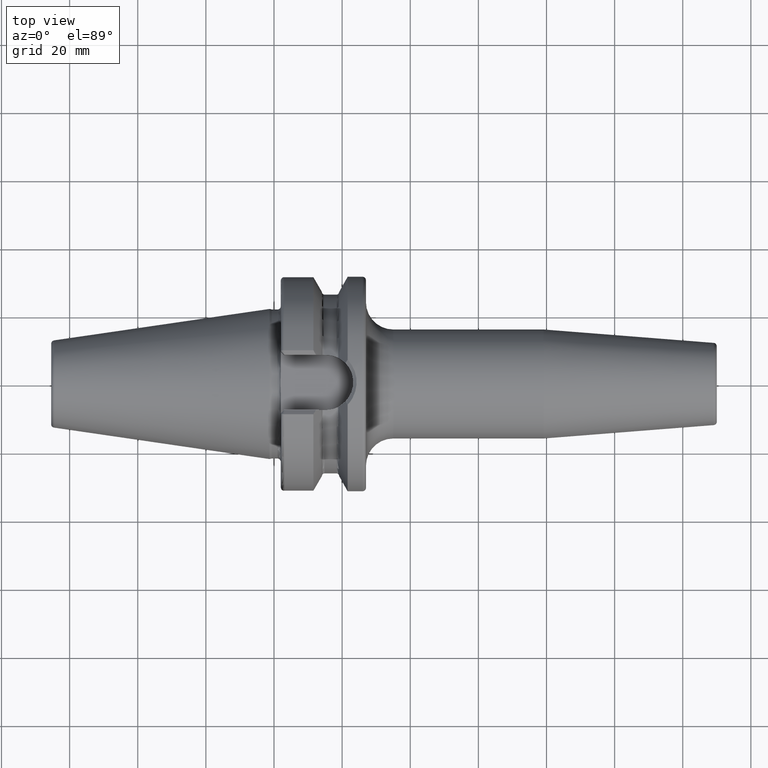
[diagram: clean part render]
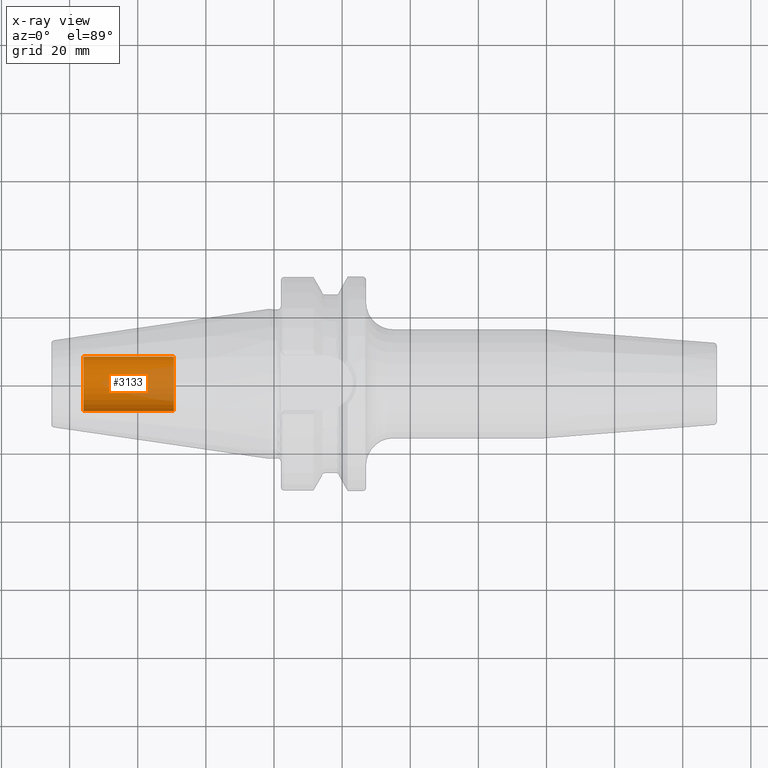
[diagram: x-ray — body ghosted, one internal face saturated and labeled with its STEP entity id]
A machine part, top view, then the same camera in x-ray: the body is ghosted and one INTERNAL B-rep face — a face not visible from any outside direction — is saturated and labeled: STEP entity #3133.
In plain terms, the highlighted cylindrical surface (edge-blend (fillet) strip) has radius 8.0028 mm, axis along (1, 0, 0).
Its self-contained STEP definition (entity closure, byte-faithful):
#3068=CARTESIAN_POINT('',(-5.595E1,0.E0,0.E0));
#3069=DIRECTION('',(-1.E0,0.E0,0.E0));
#3070=DIRECTION('',(0.E0,1.E0,0.E0));
#3071=AXIS2_PLACEMENT_3D('',#3068,#3069,#3070);
#3073=DIRECTION('',(1.E0,0.E0,0.E0));
#3074=VECTOR('',#3073,2.655E1);
#3075=CARTESIAN_POINT('',(-5.595E1,-8.00275E0,0.E0));
#3076=LINE('',#3075,#3074);
#3082=DIRECTION('',(1.E0,0.E0,0.E0));
#3083=VECTOR('',#3082,2.655E1);
#3084=CARTESIAN_POINT('',(-5.595E1,8.00275E0,0.E0));
#3085=LINE('',#3084,#3083);
#3091=CARTESIAN_POINT('',(-2.94E1,0.E0,0.E0));
#3092=DIRECTION('',(1.E0,0.E0,0.E0));
#3093=DIRECTION('',(0.E0,-1.E0,0.E0));
#3094=AXIS2_PLACEMENT_3D('',#3091,#3092,#3093);
#3106=CARTESIAN_POINT('',(-5.595E1,8.00275E0,0.E0));
#3107=CARTESIAN_POINT('',(-5.595E1,-8.00275E0,0.E0));
#3108=VERTEX_POINT('',#3106);
#3109=VERTEX_POINT('',#3107);
#3110=CARTESIAN_POINT('',(-2.94E1,8.00275E0,0.E0));
#3111=CARTESIAN_POINT('',(-2.94E1,-8.00275E0,0.E0));
#3112=VERTEX_POINT('',#3110);
#3113=VERTEX_POINT('',#3111);
#3118=CARTESIAN_POINT('',(-5.595E1,0.E0,0.E0));
#3119=DIRECTION('',(1.E0,0.E0,0.E0));
#3120=DIRECTION('',(0.E0,1.E0,0.E0));
#3121=AXIS2_PLACEMENT_3D('',#3118,#3119,#3120);
#3122=CYLINDRICAL_SURFACE('',#3121,8.00275E0);
#3124=ORIENTED_EDGE('',*,*,#3123,.T.);
#3126=ORIENTED_EDGE('',*,*,#3125,.T.);
#3128=ORIENTED_EDGE('',*,*,#3127,.T.);
#3130=ORIENTED_EDGE('',*,*,#3129,.F.);
#3131=EDGE_LOOP('',(#3124,#3126,#3128,#3130));
#3132=FACE_OUTER_BOUND('',#3131,.F.);
#3133=ADVANCED_FACE('',(#3132),#3122,.T.);
#3072=CIRCLE('',#3071,8.00275E0);
#3095=CIRCLE('',#3094,8.00275E0);
#3123=EDGE_CURVE('',#3108,#3109,#3072,.T.);
#3125=EDGE_CURVE('',#3109,#3113,#3076,.T.);
#3127=EDGE_CURVE('',#3113,#3112,#3095,.T.);
#3129=EDGE_CURVE('',#3108,#3112,#3085,.T.);